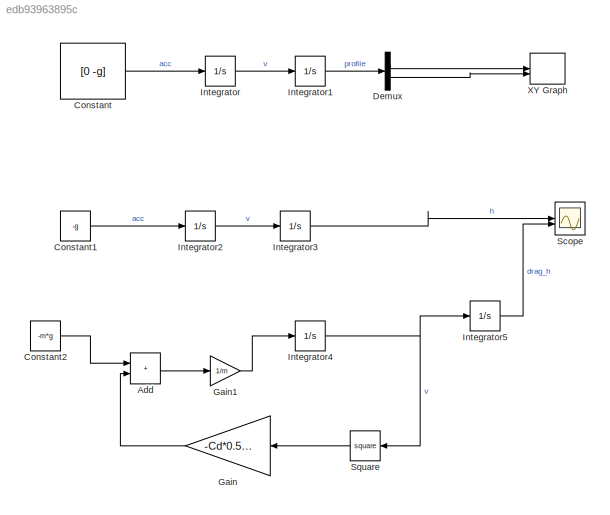
MODEL slx_edb93963895c
KIND model
CONFIG AbsTol = auto
CONFIG EnableMultiTasking = off
CONFIG FixedStep = auto
CONFIG MaxStep = auto
CONFIG MinStep = auto
CONFIG RelTol = 1e-3
CONFIG SampleTimeConstraint = Unconstrained
CONFIG SolverName = VariableStepAuto
CONFIG StartTime = 0.0
CONFIG StopTime = 2
BLOCK [Sum] Add
  IconShape = rectangular
BLOCK [Constant] Constant
  Value = [0 -g]
BLOCK [Constant] Constant1
  Value = -g
BLOCK [Constant] Constant2
  Value = -m*g
BLOCK [Demux] Demux
  Outputs = 2
BLOCK [Gain] Gain
  Gain = -Cd*0.5*rho
  NameLocation = top
BLOCK [Gain] Gain1
  Gain = 1/m
BLOCK [Integrator] Integrator
  InitialCondition = [100*cos(45) 100*sin(45)]
BLOCK [Integrator] Integrator1
BLOCK [Integrator] Integrator2
  InitialCondition = 100*sin(45)
BLOCK [Integrator] Integrator3
BLOCK [Integrator] Integrator4
  InitialCondition = 100*sin(45)
BLOCK [Integrator] Integrator5
BLOCK [Scope] Scope
  Floating = off
  NumInputPorts = 2
  ScopeSpecificationString = Simulink.scopes.TimeScopeBlockCfg('CurrentConfiguration', extmgr.ConfigurationSet(extmgr.Configuration('Core','General UI',true),extmgr.Configuration('Core','Source UI',true),extmgr.Configuration('Sources','WiredSimulink',true),extmgr.Configuration('Visuals','Time Domain',true,'SerializedDisplays',{struct('MinYLimReal','-18.82259','MaxYLimReal','169.40329','YLabelReal','','MinYLimMag','0.00000','M...<+1429ch>
BLOCK [Math] Square
  NameLocation = top
  Operator = square
BLOCK [Record] XY Graph
  CompatibilityTag = XY
  FileSettingsInternal = {"entries":[{"content":{"excelSettings":{"content":{},"type":"Streamout.ExcelSettings"}},"type":"Streamout.FileSettingStorage","uuid":""}],"packageUris":["http:\/\/schema.mathworks.com\/mf0\/streamout_blocks\/R2020a"],"version":"1.0"}
  Layout = [1 1]
  SignalsInternal = {"entries":[{"content":{"signals":[{"content":{"blockPath":[],"dimensions":[1],"domain":"","lineColor":"#a2142f","plots":[ 1 ],"port":1,"sid":[""],"signalID":1,"signalName":"Demux:1"},"type":"RecordBlkView.Signal","uuid":""},{"content":{"blockPath":[],"dimensions":[1],"domain":"","lineColor":"#139fff","plots":[ 1 ],"port":2,"sid":[""],"signalID":2,"signalName":"Demux:2"},"type":"RecordBlkView.Sign...<+160ch>
  VisualizationBindings = {"xyplotplugin":{"info":[{"series":[{"bindingParametersList":[{"parameter":"X-Axis","signalID":1,"signalName":"Demux:1"},{"parameter":"Y-Axis","signalID":2,"signalName":"Demux:2"}],"seriesID":0}],"subplotID":1}]}}
LINE Add:1 -> Gain1:1
LINE Constant1:1 -> Integrator2:1
LINE Constant2:1 -> Add:1
LINE Constant:1 -> Integrator:1
LINE Demux:1 -> XY Graph:1
LINE Demux:2 -> XY Graph:2
LINE Gain1:1 -> Integrator4:1
LINE Gain:1 -> Add:2
LINE Integrator1:1 -> Demux:1
LINE Integrator2:1 -> Integrator3:1
LINE Integrator3:1 -> Scope:1
NET Integrator4:1 -> Integrator5:1, Square:1
LINE Integrator5:1 -> Scope:2
LINE Integrator:1 -> Integrator1:1
LINE Square:1 -> Gain:1
note: NET lines group one-source signal fan-out (src -> all destinations, sorted); 1:1 wires keep LINE
